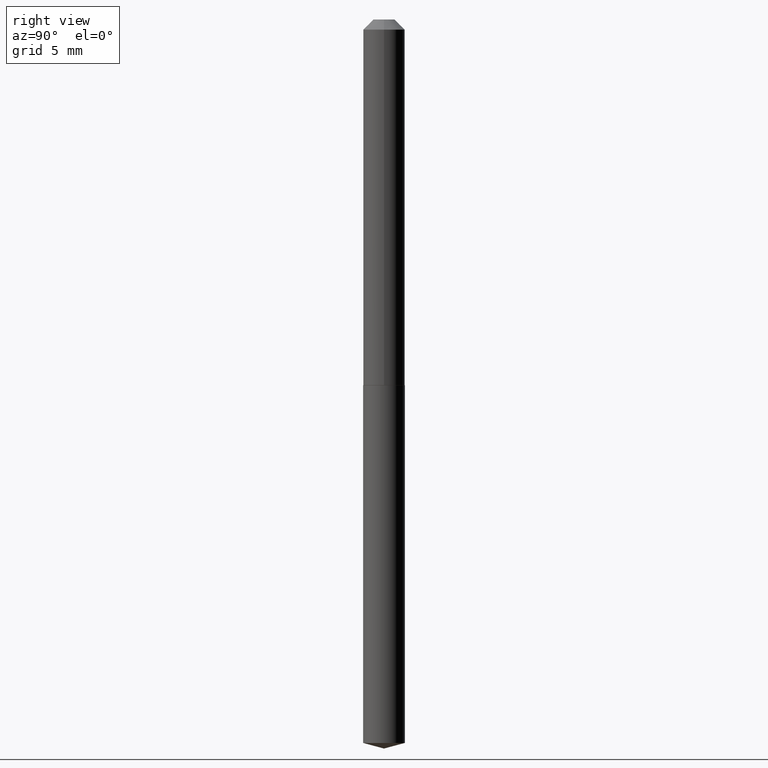
[diagram: clean part render]
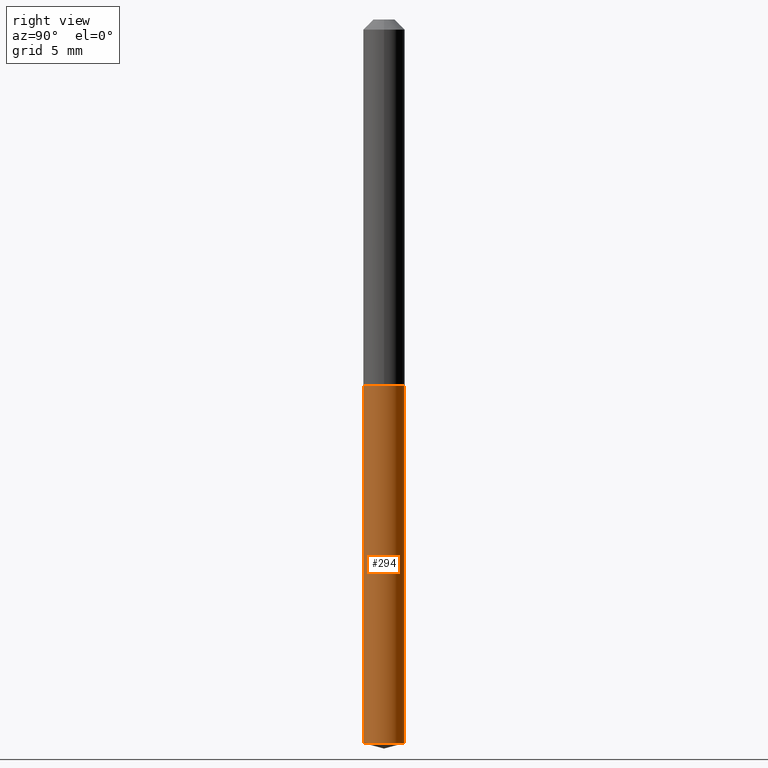
[diagram: same view with one face highlighted and labeled with its STEP entity id]
A machine part, right view. The second image highlights one B-rep face of the part: STEP entity #294.
In plain terms, the highlighted cylindrical surface (edge-blend (fillet) strip) has radius 1.632 mm, axis along (-0, 0, 1).
Its self-contained STEP definition (entity closure, byte-faithful):
#7 = VERTEX_POINT ( 'NONE', #208 ) ;
#8 = EDGE_CURVE ( 'NONE', #7, #386, #365, .T. ) ;
#11 = CIRCLE ( 'NONE', #109, 0.06425000000000000155 ) ;
#21 = AXIS2_PLACEMENT_3D ( 'NONE', #70, #336, #43 ) ;
#23 = EDGE_LOOP ( 'NONE', ( #36, #241, #298, #59 ) ) ;
#26 = CYLINDRICAL_SURFACE ( 'NONE', #275, 0.06425000000000000155 ) ;
#36 = ORIENTED_EDGE ( 'NONE', *, *, #8, .T. ) ;
#43 = DIRECTION ( 'NONE',  ( -6.982962677686265922E-15, -1.000000000000000000, 4.251903492084456561E-15 ) ) ;
#52 = DIRECTION ( 'NONE',  ( -2.446338782464142436E-29, 3.490235483295634574E-15, 1.000000000000000000 ) ) ;
#59 = ORIENTED_EDGE ( 'NONE', *, *, #327, .F. ) ;
#70 = CARTESIAN_POINT ( 'NONE',  ( 5.461164970613019444E-29, -7.794348814090572304E-15, -2.232784264386300066 ) ) ;
#72 = LINE ( 'NONE', #220, #159 ) ;
#78 = CARTESIAN_POINT ( 'NONE',  ( -4.486553520413150773E-16, -0.06425000000000394285, -1.128499999999999615 ) ) ;
#83 = CARTESIAN_POINT ( 'NONE',  ( 4.565237077259191077E-16, 0.06424999999999606026, -1.128500000000000059 ) ) ;
#95 = VERTEX_POINT ( 'NONE', #226 ) ;
#102 = EDGE_CURVE ( 'NONE', #386, #201, #72, .T. ) ;
#109 = AXIS2_PLACEMENT_3D ( 'NONE', #225, #52, #380 ) ;
#135 = DIRECTION ( 'NONE',  ( -2.446338782464142436E-29, 3.490235483295634574E-15, 1.000000000000000000 ) ) ;
#155 = DIRECTION ( 'NONE',  ( -2.446338782464142436E-29, 3.490235483295634574E-15, 1.000000000000000000 ) ) ;
#159 = VECTOR ( 'NONE', #155, 39.37007874015748143 ) ;
#192 = DIRECTION ( 'NONE',  ( -2.446338782464142436E-29, 3.490235483295634574E-15, 1.000000000000000000 ) ) ;
#197 = VECTOR ( 'NONE', #192, 39.37007874015748143 ) ;
#199 = CARTESIAN_POINT ( 'NONE',  ( 2.759711547779926600E-29, -3.940136690884488960E-15, -1.128499999999999837 ) ) ;
#201 = VERTEX_POINT ( 'NONE', #83 ) ;
#208 = CARTESIAN_POINT ( 'NONE',  ( -4.486553520412880588E-16, -0.06425000000000780087, -2.232784264386300066 ) ) ;
#220 = CARTESIAN_POINT ( 'NONE',  ( 4.565237077258918920E-16, 0.06424999999999606026, -1.128500000000000059 ) ) ;
#221 = FACE_OUTER_BOUND ( 'NONE', #23, .T. ) ;
#225 = CARTESIAN_POINT ( 'NONE',  ( 2.759711547779926600E-29, -3.940136690884488960E-15, -1.128499999999999837 ) ) ;
#226 = CARTESIAN_POINT ( 'NONE',  ( -4.486553520413150773E-16, -0.06425000000000394285, -1.128499999999999615 ) ) ;
#241 = ORIENTED_EDGE ( 'NONE', *, *, #102, .T. ) ;
#254 = DIRECTION ( 'NONE',  ( -6.982962677686265922E-15, -1.000000000000000000, 4.251903492084456561E-15 ) ) ;
#275 = AXIS2_PLACEMENT_3D ( 'NONE', #199, #135, #254 ) ;
#294 = ADVANCED_FACE ( 'NONE', ( #221 ), #26, .T. ) ;
#298 = ORIENTED_EDGE ( 'NONE', *, *, #346, .F. ) ;
#300 = CARTESIAN_POINT ( 'NONE',  ( 4.565237077259190091E-16, 0.06424999999999221612, -2.232784264386300510 ) ) ;
#327 = EDGE_CURVE ( 'NONE', #7, #95, #377, .T. ) ;
#336 = DIRECTION ( 'NONE',  ( -2.446338782464142436E-29, 3.490235483295634574E-15, 1.000000000000000000 ) ) ;
#346 = EDGE_CURVE ( 'NONE', #95, #201, #11, .T. ) ;
#365 = CIRCLE ( 'NONE', #21, 0.06425000000000000155 ) ;
#377 = LINE ( 'NONE', #78, #197 ) ;
#380 = DIRECTION ( 'NONE',  ( -6.982962677686265922E-15, -1.000000000000000000, 4.251903492084456561E-15 ) ) ;
#386 = VERTEX_POINT ( 'NONE', #300 ) ;